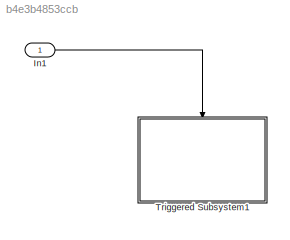
MODEL slx_b4e3b4853ccb
KIND model
CONFIG AbsTol = auto
CONFIG EnableMultiTasking = off
CONFIG FixedStep = auto
CONFIG MaxStep = auto
CONFIG MinStep = auto
CONFIG RelTol = 1e-3
CONFIG SampleTimeConstraint = Unconstrained
CONFIG Solver = FixedStepDiscrete
CONFIG SolverName = FixedStepDiscrete
CONFIG StartTime = 0.0
CONFIG StopTime = 10.0
BLOCK [Inport] In1
  IconDisplay = Port number
  OutputFunctionCall = on
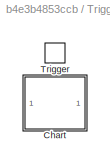
BLOCK [SubSystem] Triggered Subsystem1
  Ports = [0, 0, 0, 1]
  RTWSystemCode = Reusable function
  RequestExecContextInheritance = off
  TreatAsAtomicUnit = on
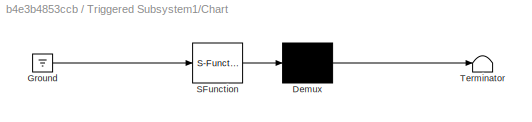
BLOCK [SubSystem] Triggered Subsystem1/Chart
  ErrorFcn = Stateflow.Translate.translate
  PermitHierarchicalResolution = ExplicitOnly
  Ports = []
  RequestExecContextInheritance = off
  SFBlockType = Chart
  TreatAsAtomicUnit = on
BLOCK [Demux] Triggered Subsystem1/Chart/ Demux 
  Outputs = 1
  Ports = [1, 1]
BLOCK [Ground] Triggered Subsystem1/Chart/ Ground 
BLOCK [S-Function] Triggered Subsystem1/Chart/ SFunction 
  EnableBusSupport = on
  FunctionName = sf_sfun
  PortCounts = [1 1]
  Ports = [1, 1]
  SFcnIsStateOwnerBlock = off
  SFunctionDeploymentMode = off
  Tag = Stateflow S-Function Trigger_Every_5ms_Edited 2
BLOCK [Terminator] Triggered Subsystem1/Chart/ Terminator 
BLOCK [TriggerPort] Triggered Subsystem1/Trigger
  Ports = []
  StatesWhenEnabling = held
  TriggerType = function-call
  VariantControl = Variant
LINE In1:1 -> Triggered Subsystem1:trigger
CHART Triggered
Subsystem1/Chart states=0 transitions=11
